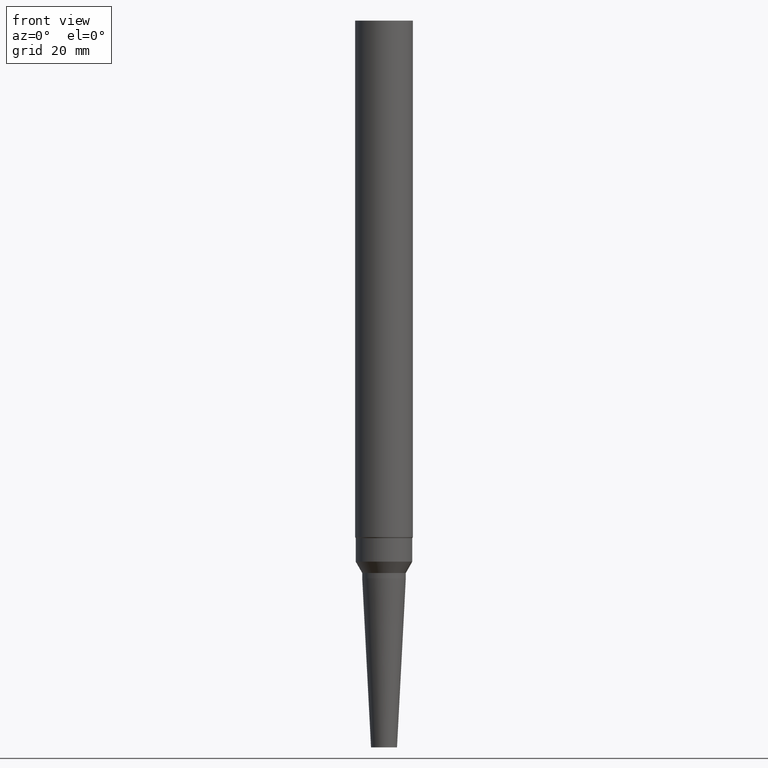
[diagram: clean part render]
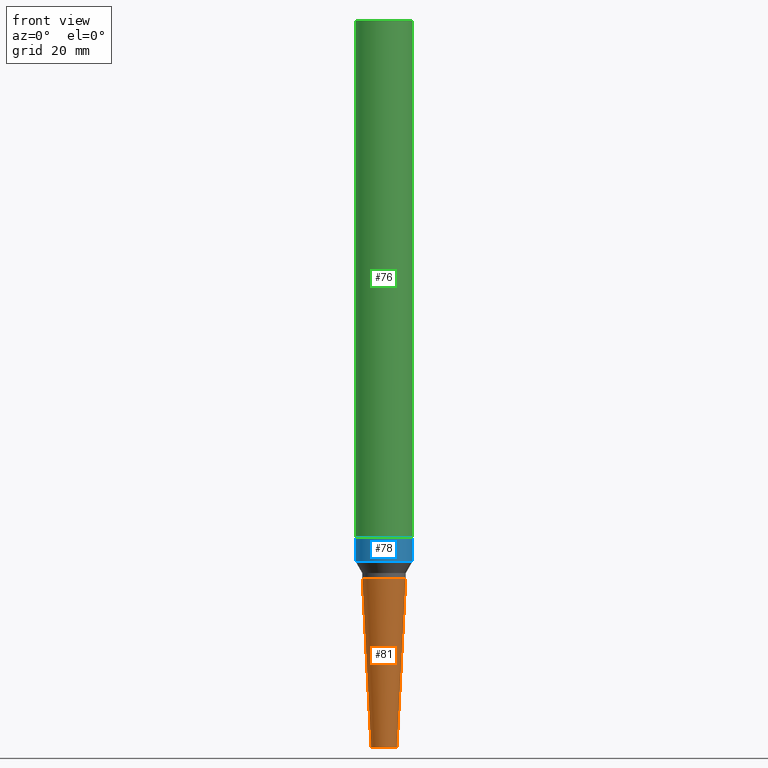
[diagram: same view with three faces highlighted in distinct colors, each labeled with its STEP entity id]
A machine part, front view with three faces highlighted in distinct colors.
Their STEP definitions:

[orange] entity #81 — the highlighted conical surface has half-angle 3 deg.
#81=ADVANCED_FACE('',(#101,#102),#103,.T.);
#101=FACE_BOUND('',#123,.T.);
#102=FACE_BOUND('',#124,.T.);
#103=CONICAL_SURFACE('',#125,6.025,0.0523598775576478);
#123=EDGE_LOOP('',(#157));
#124=EDGE_LOOP('',(#158));
#125=AXIS2_PLACEMENT_3D('',#159,#160,#161);
#157=ORIENTED_EDGE('',*,*,#172,.F.);
#158=ORIENTED_EDGE('',*,*,#171,.T.);
#159=CARTESIAN_POINT('',(-1.78178353893923E-015,-3.56356707787845E-015,29.09873345));
#160=DIRECTION('',(-6.12323399573677E-017,-1.22464679914735E-016,1.0));
#161=DIRECTION('',(-1.23259516440783E-032,1.0,1.22464679914735E-016));
#171=EDGE_CURVE('',#183,#183,#184,.T.);
#172=EDGE_CURVE('',#185,#185,#186,.T.);
#183=VERTEX_POINT('',#197);
#184=CIRCLE('',#198,7.55);
#185=VERTEX_POINT('',#199);
#186=CIRCLE('',#200,4.5);
#197=CARTESIAN_POINT('',(-3.56356707787845E-015,7.54999999999999,58.1974669));
#198=AXIS2_PLACEMENT_3D('',#216,#217,#218);
#199=CARTESIAN_POINT('',(0.0,4.5,0.0));
#200=AXIS2_PLACEMENT_3D('',#219,#220,#221);
#216=CARTESIAN_POINT('',(-3.56356707787845E-015,-7.1271341557569E-015,58.1974669));
#217=DIRECTION('',(6.12323399573677E-017,1.22464679914735E-016,-1.0));
#218=DIRECTION('',(-1.23259516440783E-032,1.0,1.22464679914735E-016));
#219=CARTESIAN_POINT('',(0.0,0.0,0.0));
#220=DIRECTION('',(6.12323399573677E-017,1.22464679914735E-016,-1.0));
#221=DIRECTION('',(-1.23259516440783E-032,1.0,1.22464679914735E-016));

[blue] entity #78 — the highlighted cylindrical surface (bore or boss wall) has radius 9.8 mm, axis along (-0, -0, 1).
#78=ADVANCED_FACE('',(#92,#93),#94,.T.);
#92=FACE_BOUND('',#114,.T.);
#93=FACE_BOUND('',#115,.T.);
#94=CYLINDRICAL_SURFACE('',#116,9.8);
#114=EDGE_LOOP('',(#142));
#115=EDGE_LOOP('',(#143));
#116=AXIS2_PLACEMENT_3D('',#144,#145,#146);
#142=ORIENTED_EDGE('',*,*,#169,.F.);
#143=ORIENTED_EDGE('',*,*,#168,.T.);
#144=CARTESIAN_POINT('',(-4.16064915163375E-015,-8.3212983032675E-015,67.94855716));
#145=DIRECTION('',(-6.12323399573677E-017,-1.22464679914735E-016,1.0));
#146=DIRECTION('',(-1.23259516440783E-032,1.0,1.22464679914735E-016));
#168=EDGE_CURVE('',#177,#177,#178,.T.);
#169=EDGE_CURVE('',#179,#179,#180,.T.);
#177=VERTEX_POINT('',#191);
#178=CIRCLE('',#192,9.8);
#179=VERTEX_POINT('',#193);
#180=CIRCLE('',#194,9.8);
#191=CARTESIAN_POINT('',(-4.40872847693047E-015,9.79999999999999,72.0));
#192=AXIS2_PLACEMENT_3D('',#207,#208,#209);
#193=CARTESIAN_POINT('',(-3.91256982633702E-015,9.79999999999999,63.89711432));
#194=AXIS2_PLACEMENT_3D('',#210,#211,#212);
#207=CARTESIAN_POINT('',(-4.40872847693047E-015,-8.81745695386094E-015,72.0));
#208=DIRECTION('',(6.12323399573677E-017,1.22464679914735E-016,-1.0));
#209=DIRECTION('',(-1.23259516440783E-032,1.0,1.22464679914735E-016));
#210=CARTESIAN_POINT('',(-3.91256982633702E-015,-7.82513965267405E-015,63.89711432));
#211=DIRECTION('',(6.12323399573677E-017,1.22464679914735E-016,-1.0));
#212=DIRECTION('',(-1.23259516440783E-032,1.0,1.22464679914735E-016));

[green] entity #76 — the highlighted cylindrical surface (bore or boss wall) has radius 10 mm, axis along (-0, -0, 1).
#76=ADVANCED_FACE('',(#86,#87),#88,.T.);
#86=FACE_BOUND('',#108,.T.);
#87=FACE_BOUND('',#109,.T.);
#88=CYLINDRICAL_SURFACE('',#110,10.0);
#108=EDGE_LOOP('',(#132));
#109=EDGE_LOOP('',(#133));
#110=AXIS2_PLACEMENT_3D('',#134,#135,#136);
#132=ORIENTED_EDGE('',*,*,#167,.F.);
#133=ORIENTED_EDGE('',*,*,#166,.T.);
#134=CARTESIAN_POINT('',(-9.8690124854771E-015,-1.97380249709542E-014,161.17320508));
#135=DIRECTION('',(-6.12323399573677E-017,-1.22464679914735E-016,1.0));
#136=DIRECTION('',(-1.23259516440783E-032,1.0,1.22464679914735E-016));
#166=EDGE_CURVE('',#173,#173,#174,.T.);
#167=EDGE_CURVE('',#175,#175,#176,.T.);
#173=VERTEX_POINT('',#187);
#174=CIRCLE('',#188,10.0);
#175=VERTEX_POINT('',#189);
#176=CIRCLE('',#190,10.0);
#187=CARTESIAN_POINT('',(-1.53080849893419E-014,9.99999999999997,250.0));
#188=AXIS2_PLACEMENT_3D('',#201,#202,#203);
#189=CARTESIAN_POINT('',(-4.42993998161228E-015,9.99999999999999,72.34641016));
#190=AXIS2_PLACEMENT_3D('',#204,#205,#206);
#201=CARTESIAN_POINT('',(-1.53080849893419E-014,-3.06161699786838E-014,250.0));
#202=DIRECTION('',(6.12323399573677E-017,1.22464679914735E-016,-1.0));
#203=DIRECTION('',(-1.23259516440783E-032,1.0,1.22464679914735E-016));
#204=CARTESIAN_POINT('',(-4.42993998161228E-015,-8.85987996322456E-015,72.34641016));
#205=DIRECTION('',(6.12323399573677E-017,1.22464679914735E-016,-1.0));
#206=DIRECTION('',(-1.23259516440783E-032,1.0,1.22464679914735E-016));